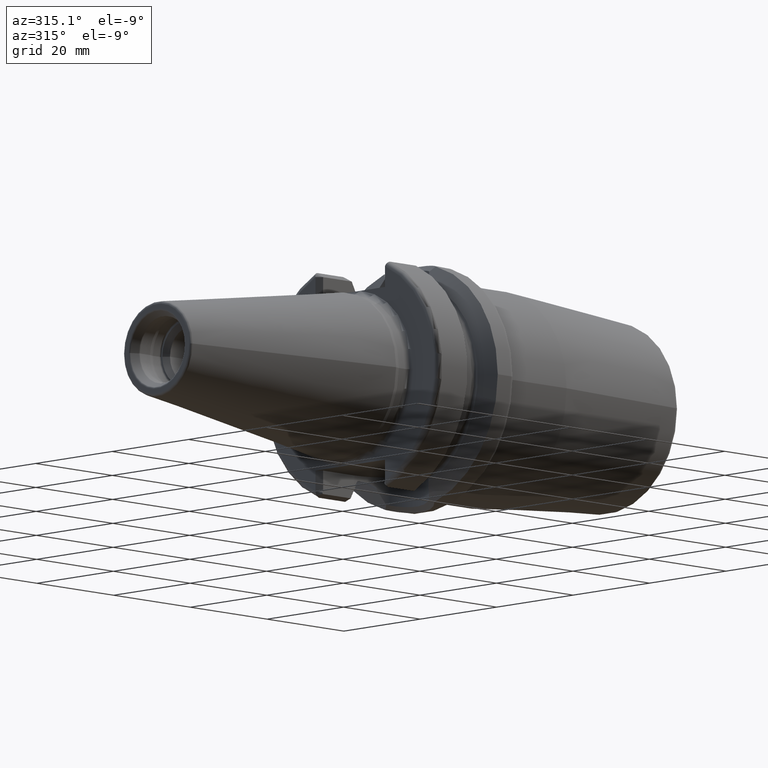
[diagram: clean part render]
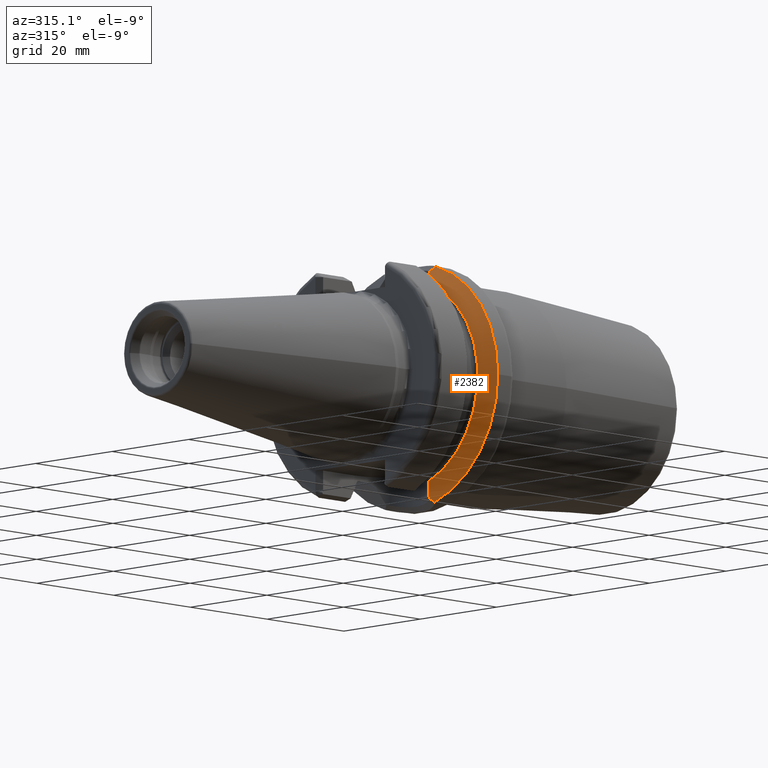
[diagram: same view with one face highlighted and labeled with its STEP entity id]
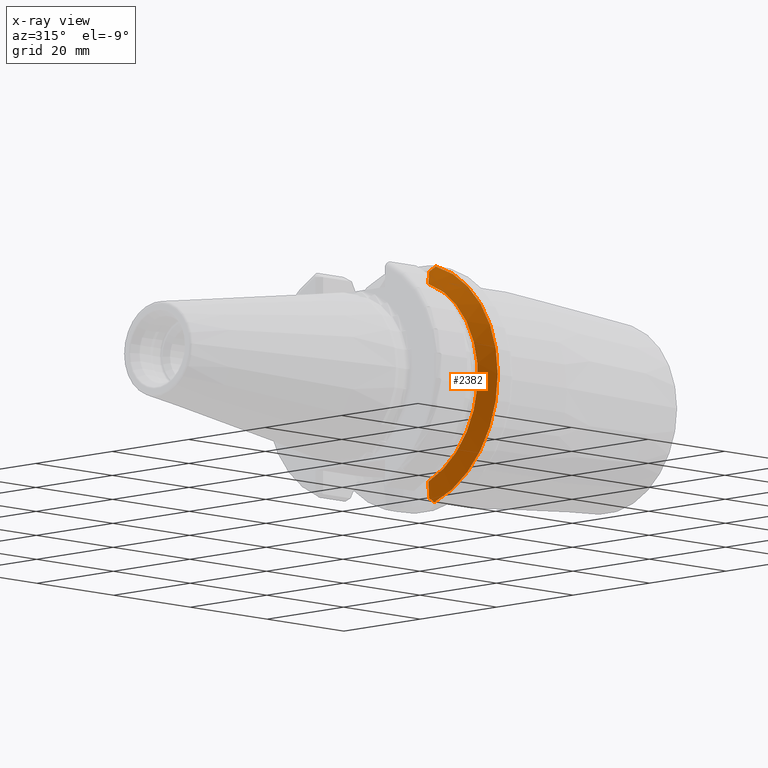
[diagram: x-ray of the same camera — body ghosted, the highlighted face saturated]
A machine part, auxiliary view. The second image highlights one B-rep face of the part: STEP entity #2382.
The next image is the same camera in x-ray: the body ghosted, the highlighted face saturated — about 0% of this face is hidden behind the body in this view.
In plain terms, the highlighted conical surface has half-angle 60 deg.
Its self-contained STEP definition (entity closure, byte-faithful):
#226=CARTESIAN_POINT('',(1.754907584126E1,0.E0,0.E0));
#227=DIRECTION('',(1.E0,0.E0,0.E0));
#228=DIRECTION('',(0.E0,-1.E0,0.E0));
#229=AXIS2_PLACEMENT_3D('',#226,#227,#228);
#301=CARTESIAN_POINT('',(1.698654743284E1,-5.614452737227E0,-2.128773692951E1));
#302=CARTESIAN_POINT('',(1.685107103184E1,-5.755167619944E0,-2.100794867350E1));
#303=CARTESIAN_POINT('',(1.657018228212E1,-6.026536433094E0,-2.042717096589E1));
#304=CARTESIAN_POINT('',(1.612019321532E1,-6.402407747302E0,-1.949400229719E1));
#305=CARTESIAN_POINT('',(1.580140145437E1,-6.631645487516E0,-1.883051788112E1));
#306=CARTESIAN_POINT('',(1.56375E1,-6.740639342822E0,-1.848861619239E1));
#539=CARTESIAN_POINT('',(1.56375E1,-6.740639342822E0,1.848861619239E1));
#540=CARTESIAN_POINT('',(1.585767247034E1,-6.594225471952E0,1.894790033793E1));
#541=CARTESIAN_POINT('',(1.628171976104E1,-6.281140526994E0,1.982974129959E1));
#542=CARTESIAN_POINT('',(1.667161664884E1,-5.929979516978E0,2.063692715611E1));
#543=CARTESIAN_POINT('',(1.685763265114E1,-5.745346451357E0,2.102139504543E1));
#754=CARTESIAN_POINT('',(1.56375E1,0.E0,0.E0));
#755=DIRECTION('',(-1.E0,0.E0,0.E0));
#756=DIRECTION('',(0.E0,-3.425286351209E-1,-9.395073890727E-1));
#757=AXIS2_PLACEMENT_3D('',#754,#755,#756);
#759=CARTESIAN_POINT('',(1.754907584126E1,-6.443032679053E0,-2.206869796560E1));
#760=CARTESIAN_POINT('',(1.748456901312E1,-6.349229342496E0,-2.197969071488E1));
#761=CARTESIAN_POINT('',(1.735689008885E1,-6.162789812709E0,-2.180316770528E1));
#762=CARTESIAN_POINT('',(1.716937022838E1,-5.886595386436E0,-2.154283832910E1));
#763=CARTESIAN_POINT('',(1.704704179076E1,-5.704784930306E0,-2.137227484606E1));
#764=CARTESIAN_POINT('',(1.698654743284E1,-5.614452737227E0,-2.128773692951E1));
#783=CARTESIAN_POINT('',(1.754907584126E1,0.E0,0.E0));
#784=DIRECTION('',(1.E0,0.E0,0.E0));
#785=DIRECTION('',(0.E0,-2.941213407634E-1,9.557680874080E-1));
#786=AXIS2_PLACEMENT_3D('',#783,#784,#785);
#943=CARTESIAN_POINT('',(1.685763265114E1,-5.745346451357E0,2.102139504543E1));
#944=CARTESIAN_POINT('',(1.693144167990E1,-5.855715160872E0,2.112375997325E1));
#945=CARTESIAN_POINT('',(1.708107453051E1,-6.078150083564E0,2.133074220340E1));
#946=CARTESIAN_POINT('',(1.731157671337E1,-6.416980815637E0,2.164800022547E1));
#947=CARTESIAN_POINT('',(1.746924261241E1,-6.646311278969E0,2.186398885076E1));
#948=CARTESIAN_POINT('',(1.754907584126E1,-6.761849624151E0,2.197310832951E1));
#1200=CARTESIAN_POINT('',(1.56375E1,-6.740639342822E0,-1.848861619239E1));
#1201=CARTESIAN_POINT('',(1.56375E1,-6.740639342822E0,1.848861619239E1));
#1202=VERTEX_POINT('',#1200);
#1203=VERTEX_POINT('',#1201);
#1216=CARTESIAN_POINT('',(1.754907584126E1,-2.299E1,0.E0));
#1217=CARTESIAN_POINT('',(1.754907584126E1,-6.443032679053E0,
-2.206869796560E1));
#1218=VERTEX_POINT('',#1216);
#1219=VERTEX_POINT('',#1217);
#1224=CARTESIAN_POINT('',(1.754907584126E1,-6.761849624151E0,2.197310832951E1));
#1225=VERTEX_POINT('',#1224);
#1314=VERTEX_POINT('',#543);
#1320=VERTEX_POINT('',#301);
#2365=CARTESIAN_POINT('',(1.659328792063E1,0.E0,0.E0));
#2366=DIRECTION('',(1.E0,0.E0,0.E0));
#2367=DIRECTION('',(0.E0,-1.E0,0.E0));
#2368=AXIS2_PLACEMENT_3D('',#2365,#2366,#2367);
#2369=CONICAL_SURFACE('',#2368,2.133452676021E1,6.E1);
#2371=ORIENTED_EDGE('',*,*,#2370,.T.);
#2372=ORIENTED_EDGE('',*,*,#1710,.T.);
#2374=ORIENTED_EDGE('',*,*,#2373,.T.);
#2375=ORIENTED_EDGE('',*,*,#1764,.T.);
#2376=ORIENTED_EDGE('',*,*,#1821,.T.);
#2377=ORIENTED_EDGE('',*,*,#1962,.T.);
#2379=ORIENTED_EDGE('',*,*,#2378,.T.);
#2380=EDGE_LOOP('',(#2371,#2372,#2374,#2375,#2376,#2377,#2379));
#2381=FACE_OUTER_BOUND('',#2380,.F.);
#2382=ADVANCED_FACE('',(#2381),#2369,.T.);
#230=CIRCLE('',#229,2.299E1);
#307=B_SPLINE_CURVE_WITH_KNOTS('',3,(#301,#302,#303,#304,#305,#306),
.UNSPECIFIED.,.F.,.F.,(4,1,1,4),(0.E0,3.333333333333E-1,6.666666666667E-1,1.E0),
.UNSPECIFIED.);
#544=B_SPLINE_CURVE_WITH_KNOTS('',3,(#539,#540,#541,#542,#543),.UNSPECIFIED.,
.F.,.F.,(4,1,4),(0.E0,5.E-1,1.E0),.UNSPECIFIED.);
#758=CIRCLE('',#757,1.967905352042E1);
#765=B_SPLINE_CURVE_WITH_KNOTS('',3,(#759,#760,#761,#762,#763,#764),
.UNSPECIFIED.,.F.,.F.,(4,1,1,4),(0.E0,3.333333333333E-1,6.666666666667E-1,1.E0),
.UNSPECIFIED.);
#787=CIRCLE('',#786,2.299E1);
#949=B_SPLINE_CURVE_WITH_KNOTS('',3,(#943,#944,#945,#946,#947,#948),
.UNSPECIFIED.,.F.,.F.,(4,1,1,4),(0.E0,3.333333333333E-1,6.666666666667E-1,1.E0),
.UNSPECIFIED.);
#1710=EDGE_CURVE('',#1218,#1219,#230,.T.);
#1764=EDGE_CURVE('',#1320,#1202,#307,.T.);
#1821=EDGE_CURVE('',#1202,#1203,#758,.T.);
#1962=EDGE_CURVE('',#1203,#1314,#544,.T.);
#2370=EDGE_CURVE('',#1225,#1218,#787,.T.);
#2373=EDGE_CURVE('',#1219,#1320,#765,.T.);
#2378=EDGE_CURVE('',#1314,#1225,#949,.T.);